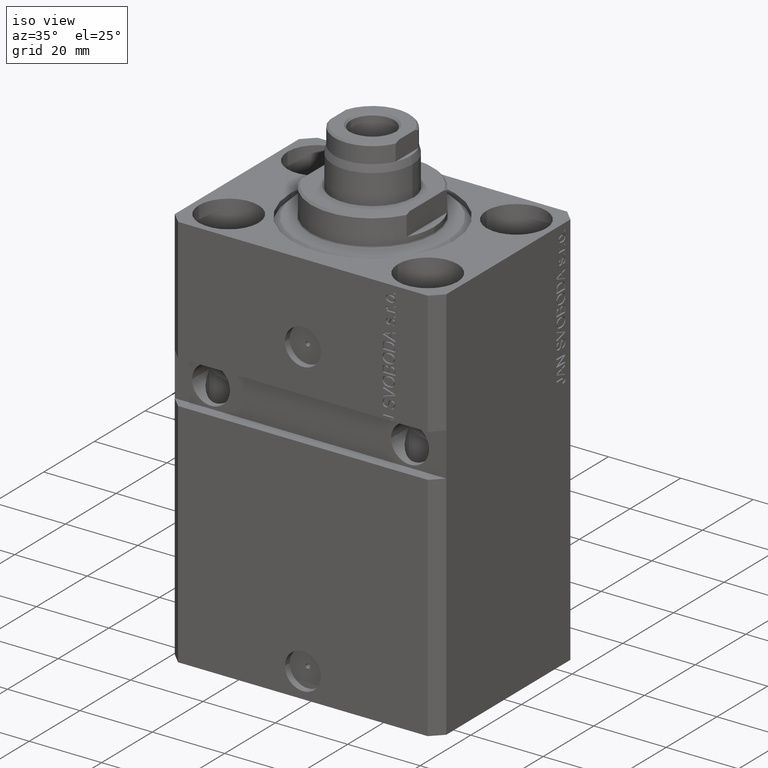
[diagram: clean part render]
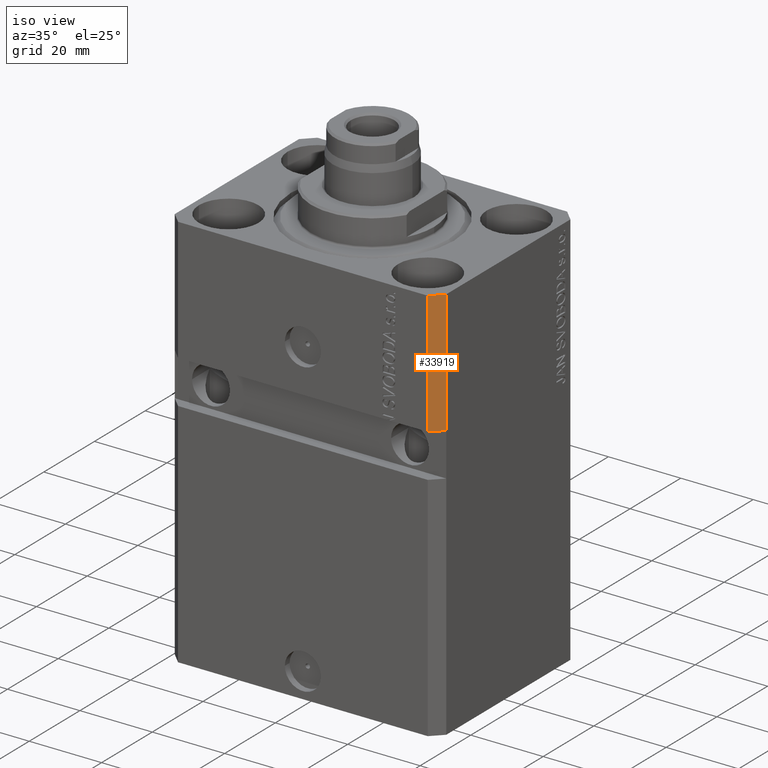
[diagram: same view with one face highlighted and labeled with its STEP entity id]
A machine part, iso view. The second image highlights one B-rep face of the part: STEP entity #33919.
In plain terms, the highlighted planar face has unit normal (0.7071, -0.7071, 0).
Its self-contained STEP definition (entity closure, byte-faithful):
#2558 = DIRECTION ( 'NONE',  ( 0.7071067811865475727, -0.7071067811865475727, 0.000000000000000000 ) ) ;
#5862 = CARTESIAN_POINT ( 'NONE',  ( 34.49999999999997868, -27.50000000000000711, -33.99999999999998579 ) ) ;
#6094 = LINE ( 'NONE', #5862, #6430 ) ;
#6430 = VECTOR ( 'NONE', #9592, 1000.000000000000114 ) ;
#6563 = CARTESIAN_POINT ( 'NONE',  ( 37.49999999999999289, -24.50000000000000000, 0.000000000000000000 ) ) ;
#6689 = VECTOR ( 'NONE', #23753, 1000.000000000000000 ) ;
#7023 = ORIENTED_EDGE ( 'NONE', *, *, #43939, .F. ) ;
#8699 = CARTESIAN_POINT ( 'NONE',  ( 37.49999999999999289, -24.50000000000000000, -110.0000000000000000 ) ) ;
#9357 = LINE ( 'NONE', #16148, #17903 ) ;
#9473 = LINE ( 'NONE', #38017, #6689 ) ;
#9487 = VERTEX_POINT ( 'NONE', #11523 ) ;
#9557 = CARTESIAN_POINT ( 'NONE',  ( 34.49999999999999289, -27.49999999999999645, -110.0000000000000000 ) ) ;
#9592 = DIRECTION ( 'NONE',  ( -0.7071067811865474617, -0.7071067811865474617, -1.962615573354719390E-16 ) ) ;
#10395 = EDGE_CURVE ( 'NONE', #40980, #39648, #26494, .T. ) ;
#11523 = CARTESIAN_POINT ( 'NONE',  ( 34.49999999999999289, -27.49999999999999645, 0.000000000000000000 ) ) ;
#15951 = EDGE_LOOP ( 'NONE', ( #25058, #24334, #27602, #7023 ) ) ;
#16148 = CARTESIAN_POINT ( 'NONE',  ( 34.49999999999999289, -27.49999999999999645, 0.000000000000000000 ) ) ;
#17903 = VECTOR ( 'NONE', #19650, 1000.000000000000114 ) ;
#19650 = DIRECTION ( 'NONE',  ( 0.7071067811865474617, 0.7071067811865474617, 0.000000000000000000 ) ) ;
#19852 = EDGE_CURVE ( 'NONE', #40980, #29337, #6094, .T. ) ;
#23753 = DIRECTION ( 'NONE',  ( 0.000000000000000000, 0.000000000000000000, 1.000000000000000000 ) ) ;
#24334 = ORIENTED_EDGE ( 'NONE', *, *, #10395, .T. ) ;
#25058 = ORIENTED_EDGE ( 'NONE', *, *, #19852, .F. ) ;
#26494 = LINE ( 'NONE', #8699, #40642 ) ;
#27602 = ORIENTED_EDGE ( 'NONE', *, *, #44210, .F. ) ;
#29337 = VERTEX_POINT ( 'NONE', #43744 ) ;
#31318 = FACE_OUTER_BOUND ( 'NONE', #15951, .T. ) ;
#31546 = PLANE ( 'NONE',  #39628 ) ;
#33919 = ADVANCED_FACE ( 'NONE', ( #31318 ), #31546, .T. ) ;
#36111 = CARTESIAN_POINT ( 'NONE',  ( 37.49999999999999289, -24.49999999999999289, -33.99999999999997868 ) ) ;
#38017 = CARTESIAN_POINT ( 'NONE',  ( 34.49999999999999289, -27.49999999999999645, -110.0000000000000000 ) ) ;
#38173 = DIRECTION ( 'NONE',  ( 0.000000000000000000, 0.000000000000000000, 1.000000000000000000 ) ) ;
#39628 = AXIS2_PLACEMENT_3D ( 'NONE', #9557, #2558, #45582 ) ;
#39648 = VERTEX_POINT ( 'NONE', #6563 ) ;
#40642 = VECTOR ( 'NONE', #38173, 1000.000000000000000 ) ;
#40980 = VERTEX_POINT ( 'NONE', #36111 ) ;
#43744 = CARTESIAN_POINT ( 'NONE',  ( 34.49999999999999289, -27.49999999999999289, -33.99999999999997868 ) ) ;
#43939 = EDGE_CURVE ( 'NONE', #29337, #9487, #9473, .T. ) ;
#44210 = EDGE_CURVE ( 'NONE', #9487, #39648, #9357, .T. ) ;
#45582 = DIRECTION ( 'NONE',  ( 0.7071067811865474617, 0.7071067811865474617, 0.000000000000000000 ) ) ;